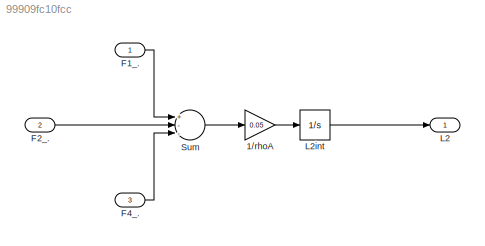
MODEL slx_99909fc10fcc
KIND model
CONFIG AbsTol = auto
CONFIG EnableMultiTasking = off
CONFIG FixedStep = auto
CONFIG MaxStep = auto
CONFIG MinStep = auto
CONFIG RelTol = 1e-3
CONFIG SampleTimeConstraint = Unconstrained
CONFIG Solver = VariableStepAuto
CONFIG SolverName = VariableStepAuto
CONFIG StartTime = 0.0
CONFIG StopTime = 100.0
BLOCK [Gain] 1//rhoA
  Gain = 0.05
  OutDataTypeStr = Inherit: Inherit via internal rule
  ParamDataTypeStr = Inherit: Inherit via internal rule
  SaturateOnIntegerOverflow = off
BLOCK [Inport] F1_.
  IconDisplay = Port number
BLOCK [Inport] F2_.
  IconDisplay = Port number
  Port = 2
BLOCK [Inport] F4_.
  IconDisplay = Port number
  Port = 3
BLOCK [Outport] L2
  IconDisplay = Port number
BLOCK [Integrator] L2int
  Ports = [1, 1]
BLOCK [Sum] Sum
  InputSameDT = off
  Inputs = +--
  OutDataTypeStr = Inherit: Inherit via internal rule
  Ports = [3, 1]
  SaturateOnIntegerOverflow = off
LINE 1//rhoA:1 -> L2int:1
LINE F1_.:1 -> Sum:1
LINE F2_.:1 -> Sum:2
LINE F4_.:1 -> Sum:3
LINE L2int:1 -> L2:1
LINE Sum:1 -> 1//rhoA:1
